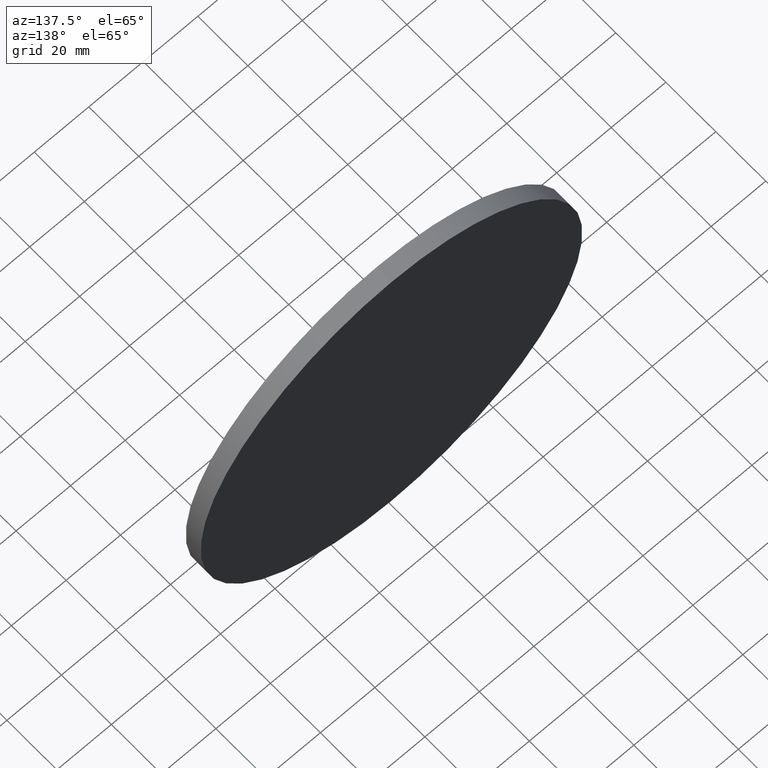
[diagram: clean part render]
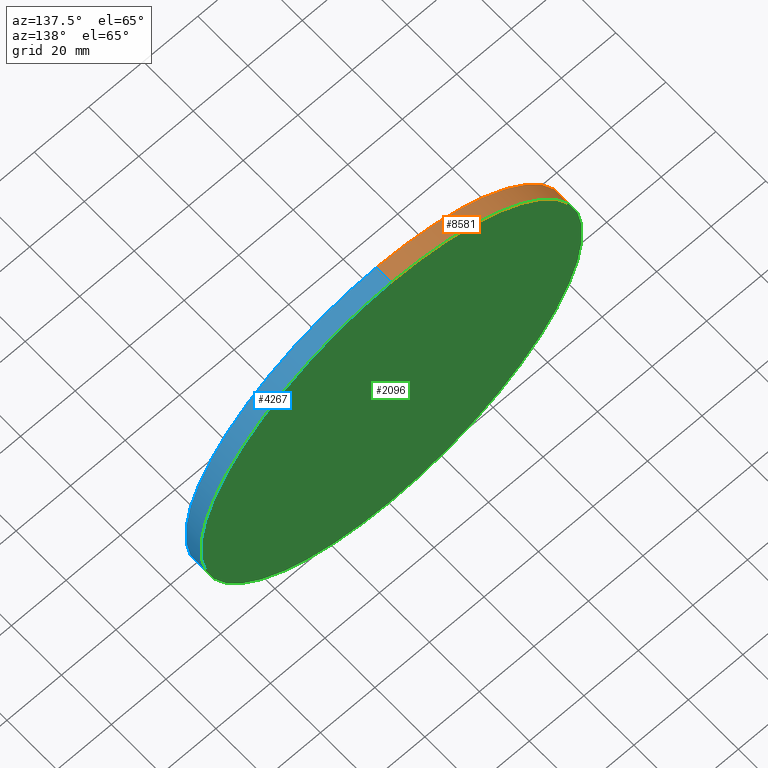
[diagram: same view with three faces highlighted in distinct colors, each labeled with its STEP entity id]
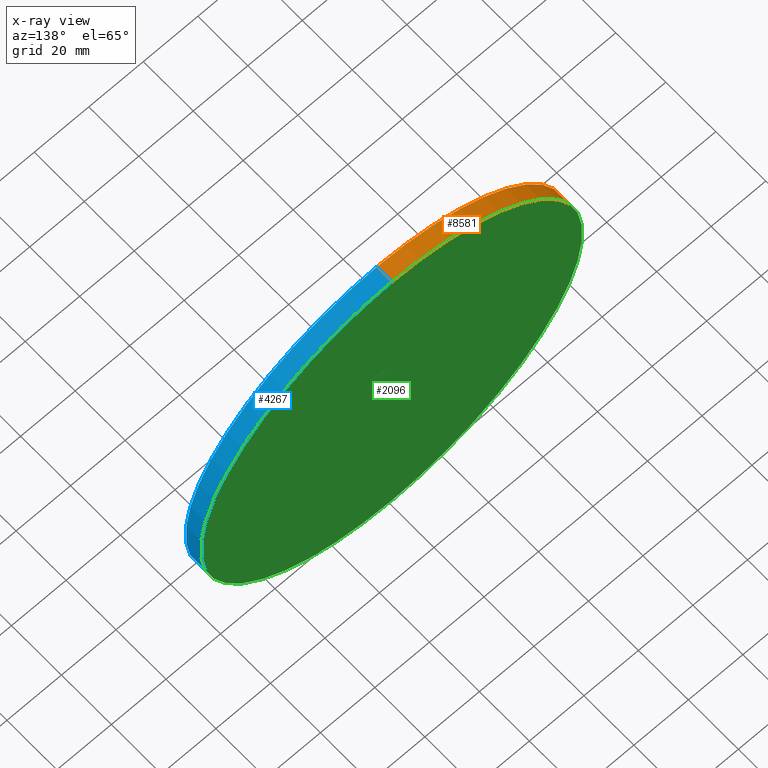
[diagram: x-ray of the same camera — body ghosted, the three highlighted faces saturated]
A machine part, auxiliary view with three faces highlighted in distinct colors.
The next image is the same camera in x-ray (body ghosted, the three faces saturated) — at least one of them is partly hidden behind the body in this view.
Their STEP definitions:

[orange] entity #8581 — the highlighted cylindrical surface (partial cylindrical patch) has radius 70 mm, axis along (-0, -1, -0).
#149 = CARTESIAN_POINT ( 'NONE',  ( 0.000000000000000000, 3.000000000000000000, -70.00000000000001421 ) ) ;
#231 = CARTESIAN_POINT ( 'NONE',  ( 0.000000000000000000, 3.000000000000000000, 0.000000000000000000 ) ) ;
#232 = EDGE_CURVE ( 'NONE', #10561, #3186, #2801, .T. ) ;
#1302 = DIRECTION ( 'NONE',  ( 0.000000000000000000, 0.000000000000000000, 1.000000000000000000 ) ) ;
#1943 = AXIS2_PLACEMENT_3D ( 'NONE', #2416, #9525, #12672 ) ;
#2416 = CARTESIAN_POINT ( 'NONE',  ( 0.000000000000000000, 3.000000000000000000, 0.000000000000000000 ) ) ;
#2475 = DIRECTION ( 'NONE',  ( 0.000000000000000000, 0.000000000000000000, -1.000000000000000000 ) ) ;
#2801 = CIRCLE ( 'NONE', #1943, 70.00000000000001421 ) ;
#2852 = DIRECTION ( 'NONE',  ( -0.000000000000000000, -1.000000000000000000, -0.000000000000000000 ) ) ;
#3114 = DIRECTION ( 'NONE',  ( 0.000000000000000000, 1.000000000000000000, 0.000000000000000000 ) ) ;
#3186 = VERTEX_POINT ( 'NONE', #11774 ) ;
#3212 = CARTESIAN_POINT ( 'NONE',  ( 8.572527594031474570E-15, 3.000000000000000000, 70.00000000000001421 ) ) ;
#3666 = EDGE_CURVE ( 'NONE', #9602, #11983, #4035, .T. ) ;
#4016 = LINE ( 'NONE', #3212, #12212 ) ;
#4035 = CIRCLE ( 'NONE', #11973, 70.00000000000001421 ) ;
#4125 = ORIENTED_EDGE ( 'NONE', *, *, #3666, .T. ) ;
#4783 = FACE_OUTER_BOUND ( 'NONE', #12136, .T. ) ;
#4982 = CARTESIAN_POINT ( 'NONE',  ( 0.000000000000000000, 3.000000000000000000, -70.00000000000001421 ) ) ;
#5050 = LINE ( 'NONE', #4982, #12787 ) ;
#5254 = CARTESIAN_POINT ( 'NONE',  ( 8.572527594031474570E-15, -3.000000000000000000, 70.00000000000001421 ) ) ;
#5406 = CARTESIAN_POINT ( 'NONE',  ( 0.000000000000000000, -3.000000000000000000, 0.000000000000000000 ) ) ;
#5822 = EDGE_CURVE ( 'NONE', #3186, #11983, #4016, .T. ) ;
#6728 = CYLINDRICAL_SURFACE ( 'NONE', #8812, 70.00000000000001421 ) ;
#7010 = CARTESIAN_POINT ( 'NONE',  ( 0.000000000000000000, -3.000000000000000000, -70.00000000000001421 ) ) ;
#8380 = DIRECTION ( 'NONE',  ( -0.000000000000000000, -1.000000000000000000, -0.000000000000000000 ) ) ;
#8581 = ADVANCED_FACE ( 'NONE', ( #4783 ), #6728, .T. ) ;
#8812 = AXIS2_PLACEMENT_3D ( 'NONE', #231, #9704, #2475 ) ;
#9525 = DIRECTION ( 'NONE',  ( 0.000000000000000000, 1.000000000000000000, 0.000000000000000000 ) ) ;
#9602 = VERTEX_POINT ( 'NONE', #7010 ) ;
#9704 = DIRECTION ( 'NONE',  ( -0.000000000000000000, -1.000000000000000000, -0.000000000000000000 ) ) ;
#10472 = EDGE_CURVE ( 'NONE', #10561, #9602, #5050, .T. ) ;
#10561 = VERTEX_POINT ( 'NONE', #149 ) ;
#11012 = ORIENTED_EDGE ( 'NONE', *, *, #232, .F. ) ;
#11425 = ORIENTED_EDGE ( 'NONE', *, *, #10472, .T. ) ;
#11774 = CARTESIAN_POINT ( 'NONE',  ( 8.572527594031474570E-15, 3.000000000000000000, 70.00000000000001421 ) ) ;
#11973 = AXIS2_PLACEMENT_3D ( 'NONE', #5406, #3114, #1302 ) ;
#11983 = VERTEX_POINT ( 'NONE', #5254 ) ;
#12136 = EDGE_LOOP ( 'NONE', ( #12544, #11012, #11425, #4125 ) ) ;
#12212 = VECTOR ( 'NONE', #8380, 1000.000000000000000 ) ;
#12544 = ORIENTED_EDGE ( 'NONE', *, *, #5822, .F. ) ;
#12672 = DIRECTION ( 'NONE',  ( 0.000000000000000000, 0.000000000000000000, 1.000000000000000000 ) ) ;
#12787 = VECTOR ( 'NONE', #2852, 1000.000000000000000 ) ;

[blue] entity #4267 — the highlighted cylindrical surface (partial cylindrical patch) has radius 70 mm, axis along (-0, -1, -0).
#149 = CARTESIAN_POINT ( 'NONE',  ( 0.000000000000000000, 3.000000000000000000, -70.00000000000001421 ) ) ;
#683 = DIRECTION ( 'NONE',  ( 0.000000000000000000, 0.000000000000000000, 1.000000000000000000 ) ) ;
#2519 = CARTESIAN_POINT ( 'NONE',  ( 0.000000000000000000, 3.000000000000000000, 0.000000000000000000 ) ) ;
#2852 = DIRECTION ( 'NONE',  ( -0.000000000000000000, -1.000000000000000000, -0.000000000000000000 ) ) ;
#3186 = VERTEX_POINT ( 'NONE', #11774 ) ;
#3212 = CARTESIAN_POINT ( 'NONE',  ( 8.572527594031474570E-15, 3.000000000000000000, 70.00000000000001421 ) ) ;
#3616 = CARTESIAN_POINT ( 'NONE',  ( 0.000000000000000000, 3.000000000000000000, 0.000000000000000000 ) ) ;
#4016 = LINE ( 'NONE', #3212, #12212 ) ;
#4267 = ADVANCED_FACE ( 'NONE', ( #12549 ), #11277, .T. ) ;
#4529 = DIRECTION ( 'NONE',  ( 0.000000000000000000, 0.000000000000000000, -1.000000000000000000 ) ) ;
#4654 = CARTESIAN_POINT ( 'NONE',  ( 0.000000000000000000, -3.000000000000000000, 0.000000000000000000 ) ) ;
#4982 = CARTESIAN_POINT ( 'NONE',  ( 0.000000000000000000, 3.000000000000000000, -70.00000000000001421 ) ) ;
#5050 = LINE ( 'NONE', #4982, #12787 ) ;
#5243 = AXIS2_PLACEMENT_3D ( 'NONE', #2519, #12797, #4529 ) ;
#5254 = CARTESIAN_POINT ( 'NONE',  ( 8.572527594031474570E-15, -3.000000000000000000, 70.00000000000001421 ) ) ;
#5430 = CIRCLE ( 'NONE', #8091, 70.00000000000001421 ) ;
#5776 = DIRECTION ( 'NONE',  ( 0.000000000000000000, 1.000000000000000000, 0.000000000000000000 ) ) ;
#5822 = EDGE_CURVE ( 'NONE', #3186, #11983, #4016, .T. ) ;
#5837 = EDGE_LOOP ( 'NONE', ( #10624, #7001, #9637, #6998 ) ) ;
#6477 = CIRCLE ( 'NONE', #8637, 70.00000000000001421 ) ;
#6692 = DIRECTION ( 'NONE',  ( 0.000000000000000000, 1.000000000000000000, 0.000000000000000000 ) ) ;
#6998 = ORIENTED_EDGE ( 'NONE', *, *, #10472, .F. ) ;
#7001 = ORIENTED_EDGE ( 'NONE', *, *, #5822, .T. ) ;
#7010 = CARTESIAN_POINT ( 'NONE',  ( 0.000000000000000000, -3.000000000000000000, -70.00000000000001421 ) ) ;
#8091 = AXIS2_PLACEMENT_3D ( 'NONE', #3616, #5776, #683 ) ;
#8342 = EDGE_CURVE ( 'NONE', #3186, #10561, #5430, .T. ) ;
#8380 = DIRECTION ( 'NONE',  ( -0.000000000000000000, -1.000000000000000000, -0.000000000000000000 ) ) ;
#8637 = AXIS2_PLACEMENT_3D ( 'NONE', #4654, #6692, #11764 ) ;
#9602 = VERTEX_POINT ( 'NONE', #7010 ) ;
#9637 = ORIENTED_EDGE ( 'NONE', *, *, #12550, .T. ) ;
#10472 = EDGE_CURVE ( 'NONE', #10561, #9602, #5050, .T. ) ;
#10561 = VERTEX_POINT ( 'NONE', #149 ) ;
#10624 = ORIENTED_EDGE ( 'NONE', *, *, #8342, .F. ) ;
#11277 = CYLINDRICAL_SURFACE ( 'NONE', #5243, 70.00000000000001421 ) ;
#11764 = DIRECTION ( 'NONE',  ( 0.000000000000000000, 0.000000000000000000, 1.000000000000000000 ) ) ;
#11774 = CARTESIAN_POINT ( 'NONE',  ( 8.572527594031474570E-15, 3.000000000000000000, 70.00000000000001421 ) ) ;
#11983 = VERTEX_POINT ( 'NONE', #5254 ) ;
#12212 = VECTOR ( 'NONE', #8380, 1000.000000000000000 ) ;
#12549 = FACE_OUTER_BOUND ( 'NONE', #5837, .T. ) ;
#12550 = EDGE_CURVE ( 'NONE', #11983, #9602, #6477, .T. ) ;
#12787 = VECTOR ( 'NONE', #2852, 1000.000000000000000 ) ;
#12797 = DIRECTION ( 'NONE',  ( -0.000000000000000000, -1.000000000000000000, -0.000000000000000000 ) ) ;

[green] entity #2096 — the highlighted planar face has unit normal (0, 1, 0).
#149 = CARTESIAN_POINT ( 'NONE',  ( 0.000000000000000000, 3.000000000000000000, -70.00000000000001421 ) ) ;
#232 = EDGE_CURVE ( 'NONE', #10561, #3186, #2801, .T. ) ;
#683 = DIRECTION ( 'NONE',  ( 0.000000000000000000, 0.000000000000000000, 1.000000000000000000 ) ) ;
#1943 = AXIS2_PLACEMENT_3D ( 'NONE', #2416, #9525, #12672 ) ;
#2096 = ADVANCED_FACE ( 'NONE', ( #10651 ), #4334, .T. ) ;
#2257 = CARTESIAN_POINT ( 'NONE',  ( 0.000000000000000000, 3.000000000000000000, 0.000000000000000000 ) ) ;
#2416 = CARTESIAN_POINT ( 'NONE',  ( 0.000000000000000000, 3.000000000000000000, 0.000000000000000000 ) ) ;
#2801 = CIRCLE ( 'NONE', #1943, 70.00000000000001421 ) ;
#3186 = VERTEX_POINT ( 'NONE', #11774 ) ;
#3307 = ORIENTED_EDGE ( 'NONE', *, *, #8342, .T. ) ;
#3616 = CARTESIAN_POINT ( 'NONE',  ( 0.000000000000000000, 3.000000000000000000, 0.000000000000000000 ) ) ;
#4334 = PLANE ( 'NONE',  #6320 ) ;
#5430 = CIRCLE ( 'NONE', #8091, 70.00000000000001421 ) ;
#5776 = DIRECTION ( 'NONE',  ( 0.000000000000000000, 1.000000000000000000, 0.000000000000000000 ) ) ;
#6320 = AXIS2_PLACEMENT_3D ( 'NONE', #2257, #8708, #7663 ) ;
#7663 = DIRECTION ( 'NONE',  ( 0.000000000000000000, -0.000000000000000000, 1.000000000000000000 ) ) ;
#8091 = AXIS2_PLACEMENT_3D ( 'NONE', #3616, #5776, #683 ) ;
#8342 = EDGE_CURVE ( 'NONE', #3186, #10561, #5430, .T. ) ;
#8708 = DIRECTION ( 'NONE',  ( 0.000000000000000000, 1.000000000000000000, 0.000000000000000000 ) ) ;
#8733 = ORIENTED_EDGE ( 'NONE', *, *, #232, .T. ) ;
#8938 = EDGE_LOOP ( 'NONE', ( #8733, #3307 ) ) ;
#9525 = DIRECTION ( 'NONE',  ( 0.000000000000000000, 1.000000000000000000, 0.000000000000000000 ) ) ;
#10561 = VERTEX_POINT ( 'NONE', #149 ) ;
#10651 = FACE_OUTER_BOUND ( 'NONE', #8938, .T. ) ;
#11774 = CARTESIAN_POINT ( 'NONE',  ( 8.572527594031474570E-15, 3.000000000000000000, 70.00000000000001421 ) ) ;
#12672 = DIRECTION ( 'NONE',  ( 0.000000000000000000, 0.000000000000000000, 1.000000000000000000 ) ) ;